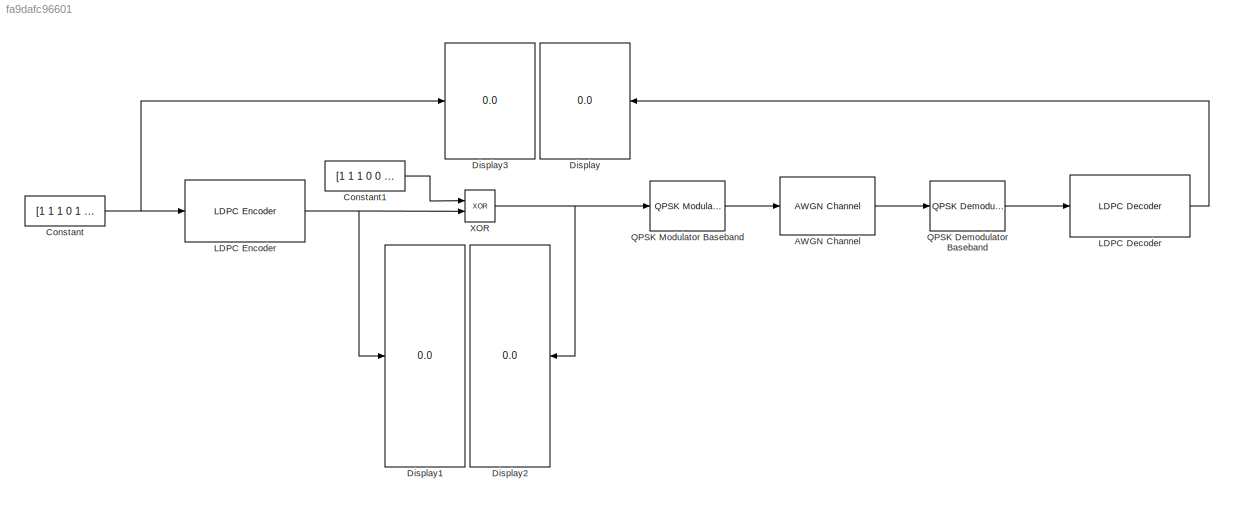
MODEL slx_fa9dafc96601
KIND model
CONFIG AbsTol = auto
CONFIG EnableMultiTasking = off
CONFIG FixedStep = auto
CONFIG MaxStep = auto
CONFIG MinStep = auto
CONFIG RelTol = 1e-3
CONFIG SampleTimeConstraint = Unconstrained
CONFIG SolverName = VariableStepAuto
CONFIG StartTime = 0.0
CONFIG StopTime = 10
WORKSPACE source: mxarray member
WORKSPACE SN = 10
WORKSPACE pcmatrix: object (value not decoded)
BLOCK [Reference] AWGN Channel  REF=commchan3/AWGN
Channel
  SourceBlock = commchan3/AWGN\nChannel
  SourceType = AWGN Channel
  UserDataPersistent = on
BLOCK [Constant] Constant
  OutDataTypeStr = boolean
  Value = [1 1 1 0 1 1]'
BLOCK [Constant] Constant1
  OutDataTypeStr = boolean
  Value = [1 1 1 0 0 0 0 0 0 0 0 0]'
BLOCK [Display] Display
  Decimation = 1
BLOCK [Display] Display1
  Decimation = 1
BLOCK [Display] Display2
  Decimation = 1
BLOCK [Display] Display3
  Decimation = 1
BLOCK [Reference] LDPC Decoder  REF=commblkcod2/LDPC Decoder
  SourceBlock = commblkcod2/LDPC Decoder
  SourceType = LDPC Decoder
BLOCK [Reference] LDPC Encoder  REF=commblkcod2/LDPC Encoder
  SourceBlock = commblkcod2/LDPC Encoder
  SourceType = LDPC Encoder
BLOCK [Reference] QPSK Demodulator Baseband  REF=commdigbbndpm3/QPSK
Demodulator
Baseband
  SourceBlock = commdigbbndpm3/QPSK\nDemodulator\nBaseband
  SourceType = QPSK Demodulator Baseband
BLOCK [Reference] QPSK Modulator Baseband  REF=commdigbbndpm3/QPSK
Modulator
Baseband
  SourceBlock = commdigbbndpm3/QPSK\nModulator\nBaseband
  SourceType = QPSK Modulator Baseband
BLOCK [Logic] XOR
  AllPortsSameDT = off
  IconShape = distinctive
  Operator = XOR
  OutDataTypeStr = boolean
LINE AWGN Channel:1 -> QPSK Demodulator Baseband:1
LINE Constant1:1 -> XOR:1
NET Constant:1 -> Display3:1, LDPC Encoder:1
LINE LDPC Decoder:1 -> Display:1
NET LDPC Encoder:1 -> Display1:1, XOR:2
LINE QPSK Demodulator Baseband:1 -> LDPC Decoder:1
LINE QPSK Modulator Baseband:1 -> AWGN Channel:1
NET XOR:1 -> Display2:1, QPSK Modulator Baseband:1
note: NET lines group one-source signal fan-out (src -> all destinations, sorted); 1:1 wires keep LINE
